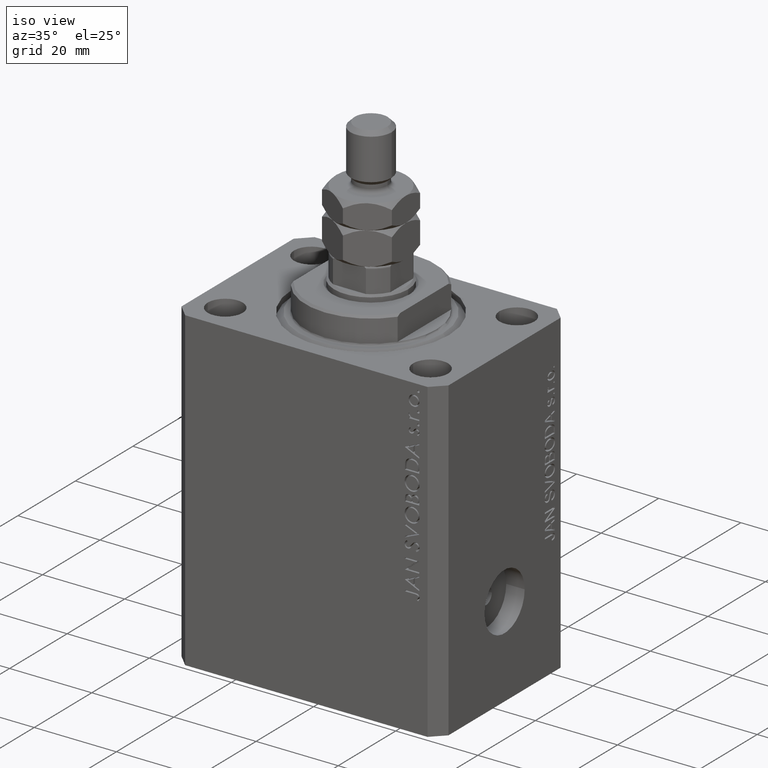
[diagram: clean part render]
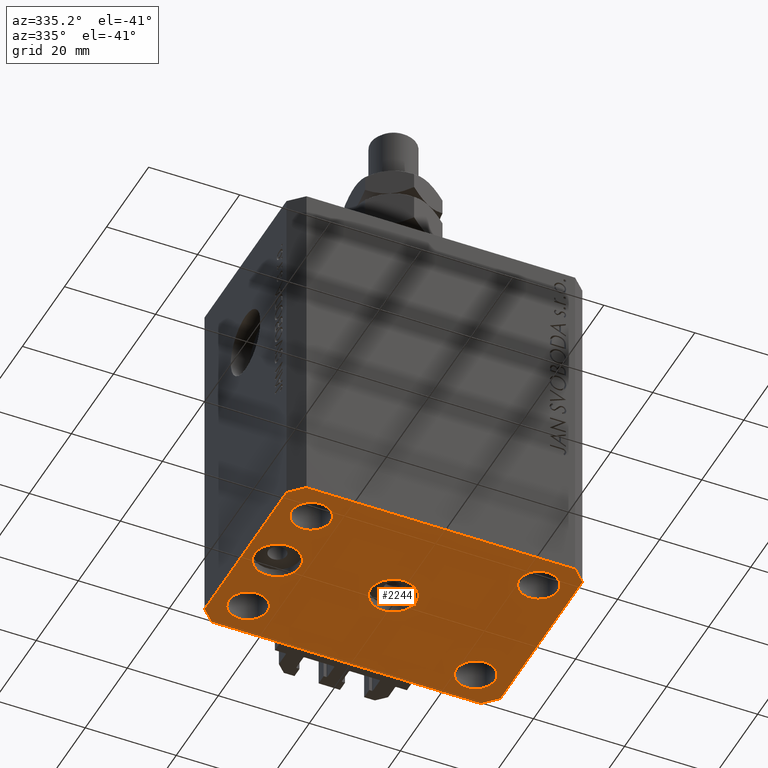
[diagram: tour spotlight — one face highlighted and labeled with its STEP entity id]
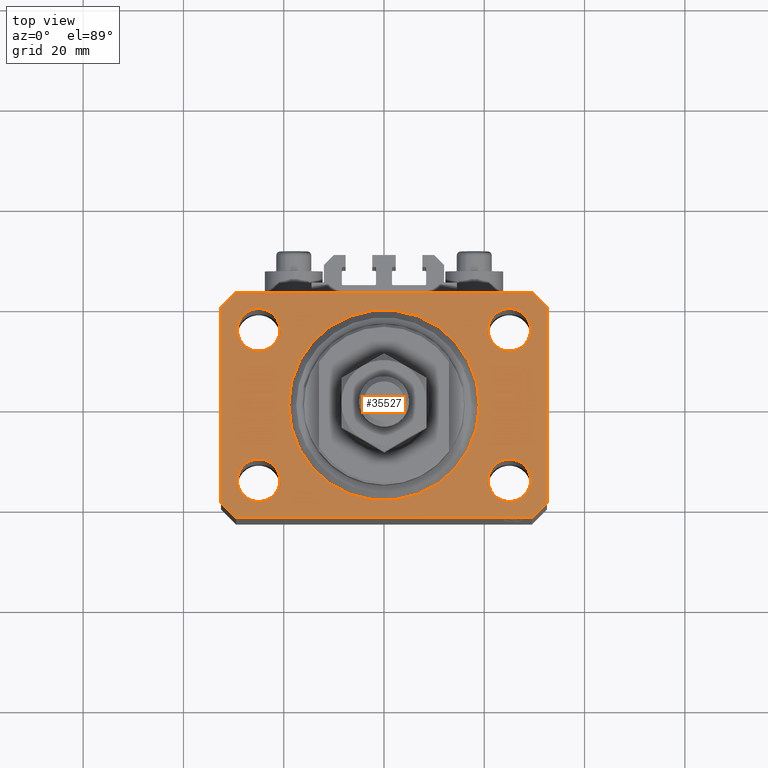
[diagram: tour spotlight — one face highlighted and labeled with its STEP entity id]
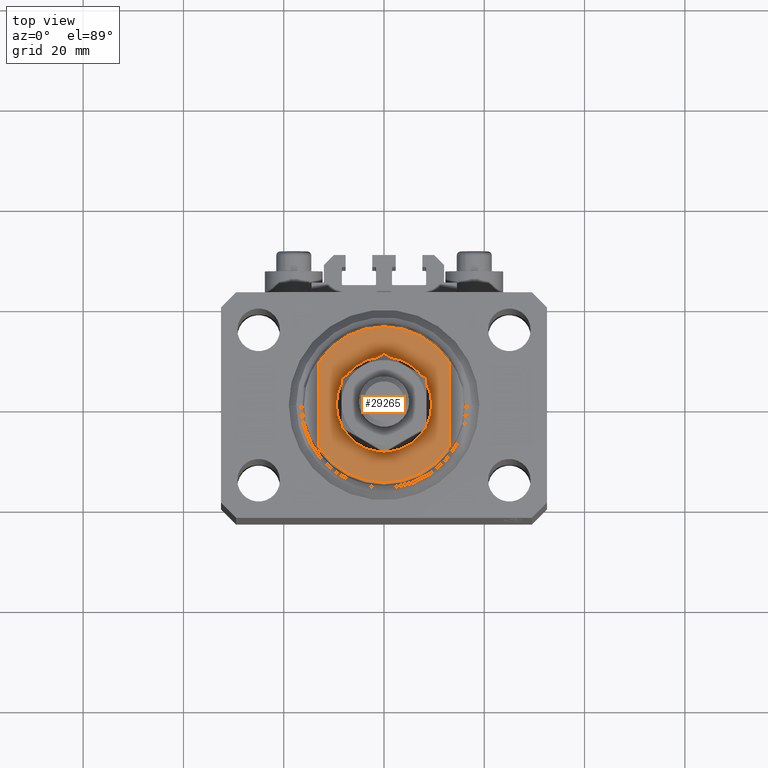
[diagram: tour spotlight — one face highlighted and labeled with its STEP entity id]
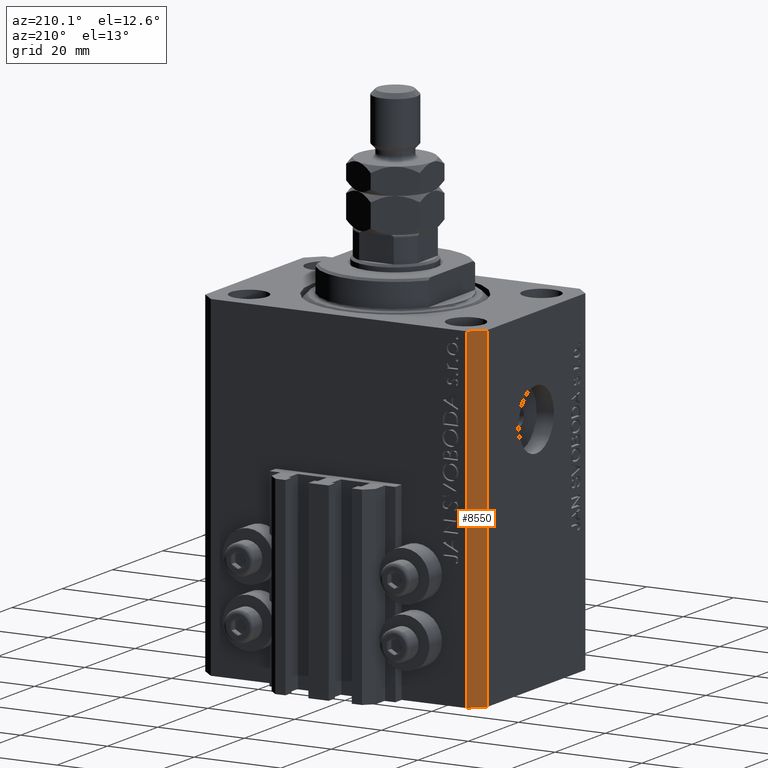
[diagram: tour spotlight — one face highlighted and labeled with its STEP entity id]
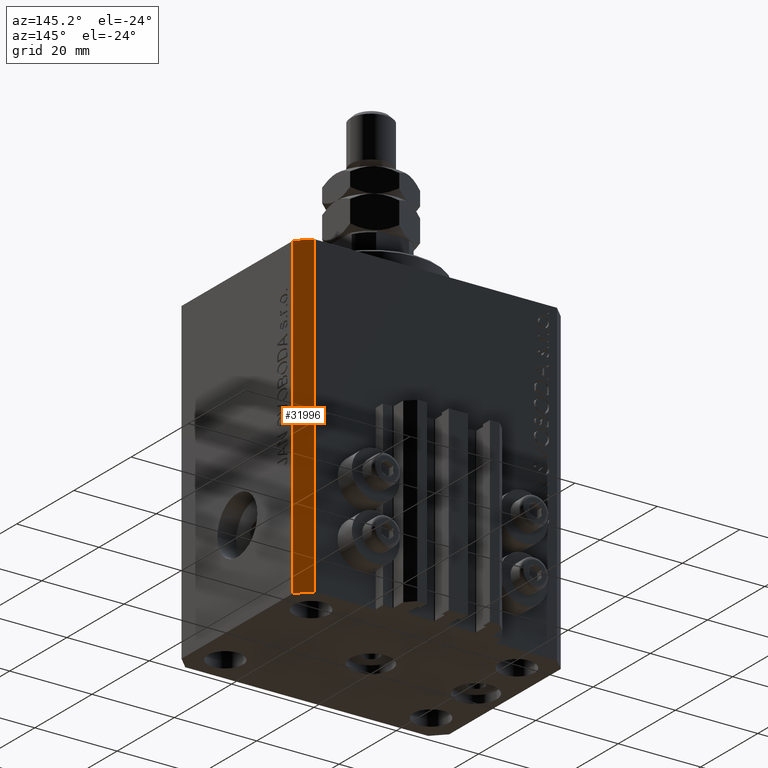
[diagram: tour spotlight — one face highlighted and labeled with its STEP entity id]
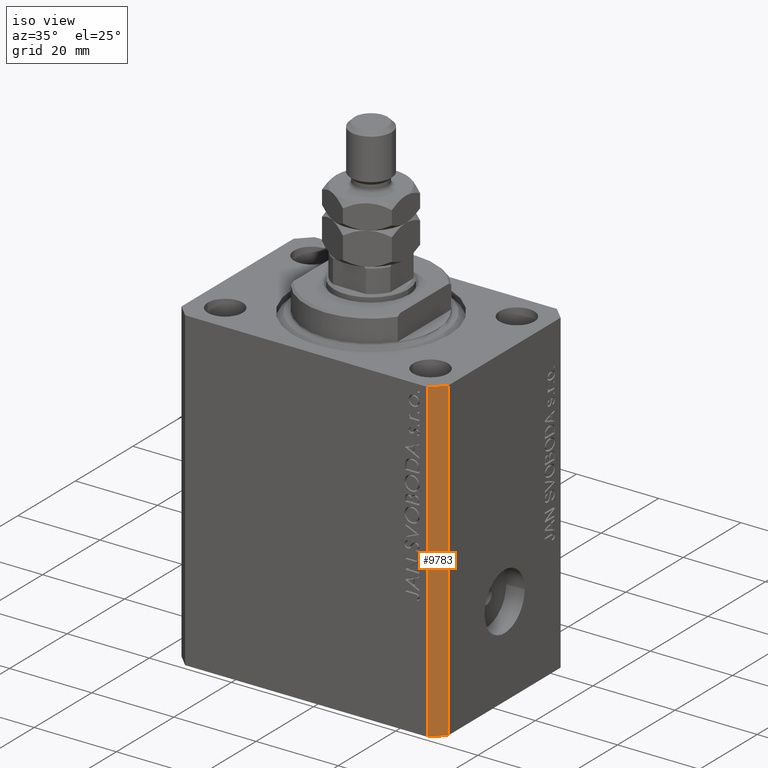
[diagram: tour spotlight — one face highlighted and labeled with its STEP entity id]
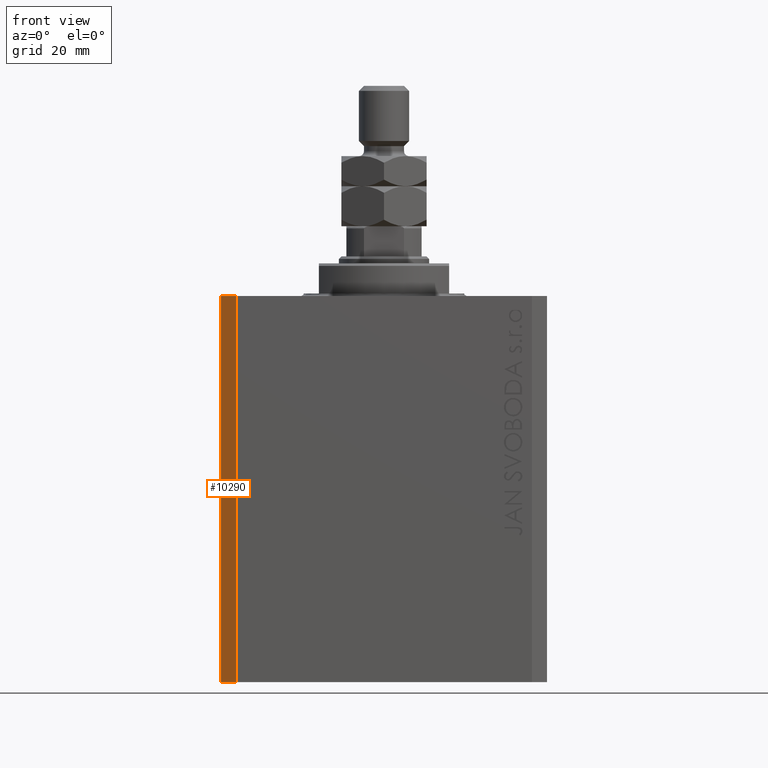
[diagram: tour spotlight — one face highlighted and labeled with its STEP entity id]
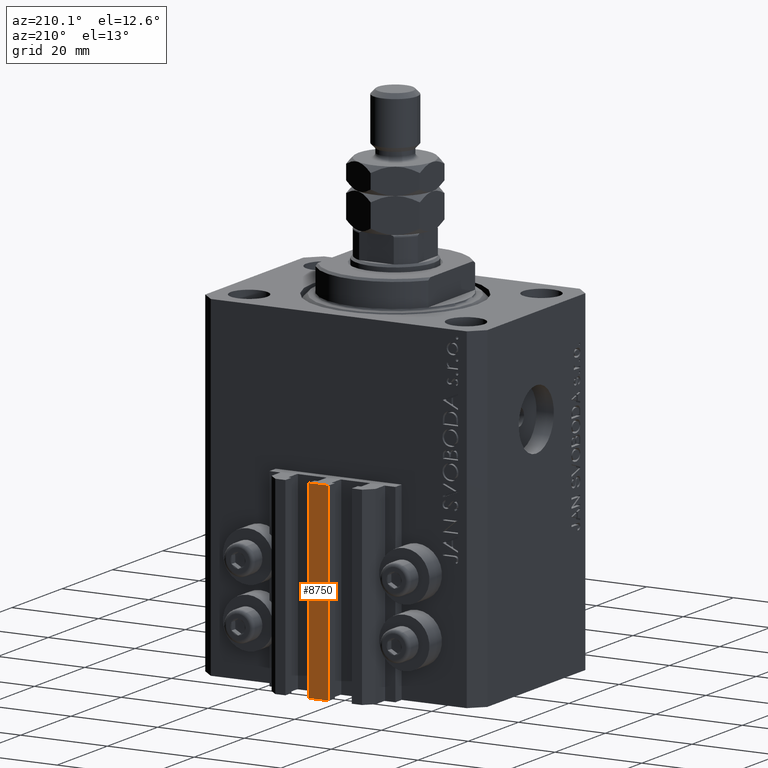
[diagram: tour spotlight — one face highlighted and labeled with its STEP entity id]
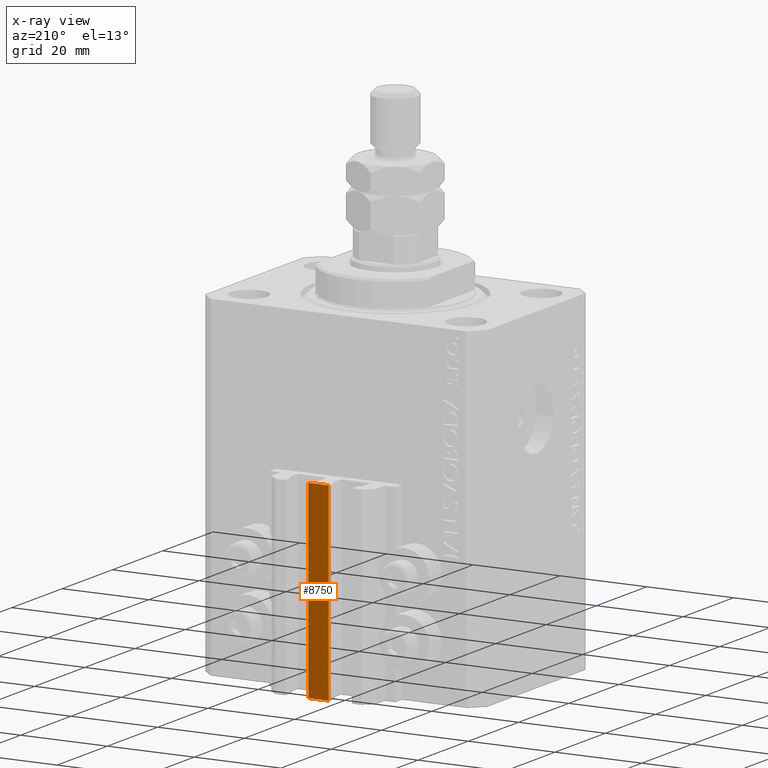
[diagram: x-ray of the same camera — body ghosted, this tour face saturated]
A machine part: a face-by-face anatomy tour. The part has 1091 B-rep faces; the first image is the clean iso view, then the 8 largest visible faces are spotlighted one at a time (largest first), each with its STEP entity span.

Face 1 — auxiliary view, entity #2244. In plain terms, the highlighted planar face has unit normal (0, 0, 1).
Definition (entity closure, byte-faithful):
#59 = ORIENTED_EDGE ( 'NONE', *, *, #20516, .F. ) ;
#62 = CIRCLE ( 'NONE', #6404, 4.999999999996659561 ) ;
#103 = AXIS2_PLACEMENT_3D ( 'NONE', #32892, #9867, #47788 ) ;
#104 = VECTOR ( 'NONE', #17889, 1000.000000000000114 ) ;
#247 = ORIENTED_EDGE ( 'NONE', *, *, #26452, .F. ) ;
#261 = CARTESIAN_POINT ( 'NONE',  ( 20.75000000002367884, -15.00000000000000355, -77.00000000000000000 ) ) ;
#453 = CARTESIAN_POINT ( 'NONE',  ( 32.49999999999651124, -19.49999999999949196, -77.00000000000000000 ) ) ;
#462 = EDGE_CURVE ( 'NONE', #41095, #13057, #23715, .T. ) ;
#701 = VERTEX_POINT ( 'NONE', #24820 ) ;
#719 = EDGE_CURVE ( 'NONE', #37061, #46610, #48325, .T. ) ;
#786 = DIRECTION ( 'NONE',  ( 0.000000000000000000, 0.000000000000000000, -1.000000000000000000 ) ) ;
#1249 = AXIS2_PLACEMENT_3D ( 'NONE', #25672, #48716, #7577 ) ;
#1302 = CARTESIAN_POINT ( 'NONE',  ( -20.74999999995962341, -15.00000000000000355, -77.00000000000000000 ) ) ;
#1388 = DIRECTION ( 'NONE',  ( -0.000000000000000000, -0.000000000000000000, -1.000000000000000000 ) ) ;
#1491 = VERTEX_POINT ( 'NONE', #1302 ) ;
#1628 = DIRECTION ( 'NONE',  ( -1.000000000000000000, 0.000000000000000000, 0.000000000000000000 ) ) ;
#1862 = DIRECTION ( 'NONE',  ( 1.000000000000000000, 0.000000000000000000, 0.000000000000000000 ) ) ;
#2244 = ADVANCED_FACE ( 'NONE', ( #29364, #11524, #3607, #45481, #33835, #2869, #33344 ), #14261, .F. ) ;
#2302 = LINE ( 'NONE', #29268, #104 ) ;
#2869 = FACE_BOUND ( 'NONE', #13497, .T. ) ;
#2940 = EDGE_CURVE ( 'NONE', #31218, #13473, #36666, .T. ) ;
#3198 = DIRECTION ( 'NONE',  ( -1.000000000000000000, -3.528251137580330676E-16, 0.000000000000000000 ) ) ;
#3607 = FACE_BOUND ( 'NONE', #5754, .T. ) ;
#4017 = AXIS2_PLACEMENT_3D ( 'NONE', #13726, #28821, #1862 ) ;
#4232 = CIRCLE ( 'NONE', #38266, 5.000000000000000000 ) ;
#4612 = DIRECTION ( 'NONE',  ( -0.000000000000000000, -0.000000000000000000, -1.000000000000000000 ) ) ;
#4625 = AXIS2_PLACEMENT_3D ( 'NONE', #34734, #786, #15896 ) ;
#5754 = EDGE_LOOP ( 'NONE', ( #43976, #26712 ) ) ;
#5830 = AXIS2_PLACEMENT_3D ( 'NONE', #47377, #20613, #24578 ) ;
#6180 = ORIENTED_EDGE ( 'NONE', *, *, #24286, .F. ) ;
#6404 = AXIS2_PLACEMENT_3D ( 'NONE', #40593, #25213, #29157 ) ;
#6427 = ORIENTED_EDGE ( 'NONE', *, *, #8540, .F. ) ;
#6837 = DIRECTION ( 'NONE',  ( -0.000000000000000000, -0.000000000000000000, -1.000000000000000000 ) ) ;
#6841 = DIRECTION ( 'NONE',  ( 1.000000000000000000, 0.000000000000000000, -0.000000000000000000 ) ) ;
#6992 = CIRCLE ( 'NONE', #4625, 4.999999999996659561 ) ;
#7188 = ORIENTED_EDGE ( 'NONE', *, *, #11378, .F. ) ;
#7402 = EDGE_LOOP ( 'NONE', ( #6180, #14826 ) ) ;
#7577 = DIRECTION ( 'NONE',  ( 1.000000000000000000, 0.000000000000000000, 0.000000000000000000 ) ) ;
#8329 = CARTESIAN_POINT ( 'NONE',  ( 25.00000000000000000, 14.99999999999999289, -77.00000000000000000 ) ) ;
#8540 = EDGE_CURVE ( 'NONE', #15214, #17379, #21715, .T. ) ;
#8763 = CIRCLE ( 'NONE', #4017, 4.250000000040370374 ) ;
#8842 = VERTEX_POINT ( 'NONE', #16241 ) ;
#8947 = VERTEX_POINT ( 'NONE', #22386 ) ;
#9867 = DIRECTION ( 'NONE',  ( -0.000000000000000000, -0.000000000000000000, -1.000000000000000000 ) ) ;
#10452 = CIRCLE ( 'NONE', #23948, 4.250000000040370374 ) ;
#11003 = EDGE_CURVE ( 'NONE', #23721, #701, #41205, .T. ) ;
#11282 = CARTESIAN_POINT ( 'NONE',  ( 24.99999999999999289, -15.00000000000000355, -77.00000000000000000 ) ) ;
#11378 = EDGE_CURVE ( 'NONE', #13347, #20943, #62, .T. ) ;
#11524 = FACE_BOUND ( 'NONE', #17331, .T. ) ;
#12761 = ORIENTED_EDGE ( 'NONE', *, *, #14538, .F. ) ;
#13057 = VERTEX_POINT ( 'NONE', #16855 ) ;
#13340 = VERTEX_POINT ( 'NONE', #31162 ) ;
#13347 = VERTEX_POINT ( 'NONE', #19764 ) ;
#13473 = VERTEX_POINT ( 'NONE', #17972 ) ;
#13497 = EDGE_LOOP ( 'NONE', ( #18049, #14944 ) ) ;
#13726 = CARTESIAN_POINT ( 'NONE',  ( -24.99999999999999289, -15.00000000000000355, -77.00000000000000000 ) ) ;
#13880 = CARTESIAN_POINT ( 'NONE',  ( 29.49999999999650413, -22.49999999999949196, -77.00000000000000000 ) ) ;
#13948 = CARTESIAN_POINT ( 'NONE',  ( 29.24999999995729283, 14.99999999999999289, -77.00000000000000000 ) ) ;
#14118 = LINE ( 'NONE', #13880, #27043 ) ;
#14261 = PLANE ( 'NONE',  #16993 ) ;
#14366 = EDGE_LOOP ( 'NONE', ( #29185, #59 ) ) ;
#14538 = EDGE_CURVE ( 'NONE', #13340, #8842, #14118, .T. ) ;
#14826 = ORIENTED_EDGE ( 'NONE', *, *, #21299, .F. ) ;
#14944 = ORIENTED_EDGE ( 'NONE', *, *, #11003, .F. ) ;
#15214 = VERTEX_POINT ( 'NONE', #21931 ) ;
#15392 = LINE ( 'NONE', #45632, #28543 ) ;
#15406 = DIRECTION ( 'NONE',  ( -0.000000000000000000, -0.000000000000000000, -1.000000000000000000 ) ) ;
#15896 = DIRECTION ( 'NONE',  ( -1.000000000000000000, 0.000000000000000000, 0.000000000000000000 ) ) ;
#16241 = CARTESIAN_POINT ( 'NONE',  ( 32.49999999999651124, -19.49999999999949196, -77.00000000000000000 ) ) ;
#16604 = ORIENTED_EDGE ( 'NONE', *, *, #462, .F. ) ;
#16855 = CARTESIAN_POINT ( 'NONE',  ( 29.24999999997631051, -15.00000000000000355, -77.00000000000000000 ) ) ;
#16993 = AXIS2_PLACEMENT_3D ( 'NONE', #44499, #25663, #6841 ) ;
#17331 = EDGE_LOOP ( 'NONE', ( #7188, #30101 ) ) ;
#17379 = VERTEX_POINT ( 'NONE', #40709 ) ;
#17451 = DIRECTION ( 'NONE',  ( 0.000000000000000000, 0.000000000000000000, -1.000000000000000000 ) ) ;
#17808 = EDGE_LOOP ( 'NONE', ( #20852, #16604 ) ) ;
#17833 = DIRECTION ( 'NONE',  ( 0.7071067811865483499, 0.7071067811865466846, 0.000000000000000000 ) ) ;
#17889 = DIRECTION ( 'NONE',  ( -0.7071067811865474617, -0.7071067811865474617, 0.000000000000000000 ) ) ;
#17925 = CARTESIAN_POINT ( 'NONE',  ( -29.49999999999650413, 22.49999999999949907, -77.00000000000000000 ) ) ;
#17972 = CARTESIAN_POINT ( 'NONE',  ( 5.000000000000000000, 6.123233995736765296E-16, -77.00000000000000000 ) ) ;
#18049 = ORIENTED_EDGE ( 'NONE', *, *, #29183, .F. ) ;
#18057 = CARTESIAN_POINT ( 'NONE',  ( 29.49999999999707967, 22.49999999999952038, -77.00000000000000000 ) ) ;
#18665 = CARTESIAN_POINT ( 'NONE',  ( -32.49999999999650413, -19.49999999999949907, -77.00000000000000000 ) ) ;
#19321 = EDGE_LOOP ( 'NONE', ( #247, #6427, #34060, #12761, #39191, #44437, #27217, #20368 ) ) ;
#19722 = DIRECTION ( 'NONE',  ( 1.000000000000000000, 0.000000000000000000, 0.000000000000000000 ) ) ;
#19764 = CARTESIAN_POINT ( 'NONE',  ( -30.49999999999665690, 0.000000000000000000, -77.00000000000000000 ) ) ;
#20368 = ORIENTED_EDGE ( 'NONE', *, *, #27563, .F. ) ;
#20516 = EDGE_CURVE ( 'NONE', #13473, #31218, #4232, .T. ) ;
#20613 = DIRECTION ( 'NONE',  ( 0.000000000000000000, 0.000000000000000000, -1.000000000000000000 ) ) ;
#20852 = ORIENTED_EDGE ( 'NONE', *, *, #35295, .F. ) ;
#20943 = VERTEX_POINT ( 'NONE', #47879 ) ;
#20965 = VERTEX_POINT ( 'NONE', #24479 ) ;
#21232 = EDGE_CURVE ( 'NONE', #20965, #1491, #10452, .T. ) ;
#21299 = EDGE_CURVE ( 'NONE', #34143, #40777, #35018, .T. ) ;
#21620 = DIRECTION ( 'NONE',  ( 1.000000000000000000, 0.000000000000000000, 0.000000000000000000 ) ) ;
#21715 = LINE ( 'NONE', #36108, #36873 ) ;
#21931 = CARTESIAN_POINT ( 'NONE',  ( 32.49999999999702993, 19.49999999999945999, -77.00000000000000000 ) ) ;
#22386 = CARTESIAN_POINT ( 'NONE',  ( -29.49999999999650413, -22.49999999999949907, -77.00000000000000000 ) ) ;
#22826 = EDGE_CURVE ( 'NONE', #8947, #13340, #15392, .T. ) ;
#23715 = CIRCLE ( 'NONE', #48239, 4.249999999976314058 ) ;
#23721 = VERTEX_POINT ( 'NONE', #47231 ) ;
#23948 = AXIS2_PLACEMENT_3D ( 'NONE', #39072, #1388, #31619 ) ;
#24286 = EDGE_CURVE ( 'NONE', #40777, #34143, #42021, .T. ) ;
#24479 = CARTESIAN_POINT ( 'NONE',  ( -29.25000000004036593, -15.00000000000000355, -77.00000000000000000 ) ) ;
#24578 = DIRECTION ( 'NONE',  ( -1.000000000000000000, 0.000000000000000000, 0.000000000000000000 ) ) ;
#24820 = CARTESIAN_POINT ( 'NONE',  ( -20.74999999997862687, 14.99999999999999645, -77.00000000000000000 ) ) ;
#25213 = DIRECTION ( 'NONE',  ( 0.000000000000000000, 0.000000000000000000, -1.000000000000000000 ) ) ;
#25342 = VERTEX_POINT ( 'NONE', #17925 ) ;
#25510 = LINE ( 'NONE', #18057, #38862 ) ;
#25663 = DIRECTION ( 'NONE',  ( 0.000000000000000000, 0.000000000000000000, 1.000000000000000000 ) ) ;
#25672 = CARTESIAN_POINT ( 'NONE',  ( -25.00000000000000000, 14.99999999999999645, -77.00000000000000000 ) ) ;
#26452 = EDGE_CURVE ( 'NONE', #17379, #25342, #25510, .T. ) ;
#26712 = ORIENTED_EDGE ( 'NONE', *, *, #21232, .F. ) ;
#27043 = VECTOR ( 'NONE', #17833, 1000.000000000000000 ) ;
#27054 = DIRECTION ( 'NONE',  ( 1.000000000000000000, 0.000000000000000000, 0.000000000000000000 ) ) ;
#27217 = ORIENTED_EDGE ( 'NONE', *, *, #719, .F. ) ;
#27266 = DIRECTION ( 'NONE',  ( 0.7071067811865474617, -0.7071067811865474617, 0.000000000000000000 ) ) ;
#27563 = EDGE_CURVE ( 'NONE', #25342, #37061, #2302, .T. ) ;
#28284 = CARTESIAN_POINT ( 'NONE',  ( -32.49999999999650413, 19.49999999999949907, -77.00000000000000000 ) ) ;
#28543 = VECTOR ( 'NONE', #37952, 1000.000000000000000 ) ;
#28821 = DIRECTION ( 'NONE',  ( -0.000000000000000000, -0.000000000000000000, -1.000000000000000000 ) ) ;
#28837 = CARTESIAN_POINT ( 'NONE',  ( 0.000000000000000000, 0.000000000000000000, -77.00000000000000000 ) ) ;
#28998 = EDGE_CURVE ( 'NONE', #8842, #15214, #48536, .T. ) ;
#29157 = DIRECTION ( 'NONE',  ( -1.000000000000000000, 0.000000000000000000, 0.000000000000000000 ) ) ;
#29183 = EDGE_CURVE ( 'NONE', #701, #23721, #31304, .T. ) ;
#29185 = ORIENTED_EDGE ( 'NONE', *, *, #2940, .F. ) ;
#29268 = CARTESIAN_POINT ( 'NONE',  ( -29.49999999999650413, 22.49999999999949907, -77.00000000000000000 ) ) ;
#29364 = FACE_BOUND ( 'NONE', #14366, .T. ) ;
#30101 = ORIENTED_EDGE ( 'NONE', *, *, #36515, .F. ) ;
#30126 = AXIS2_PLACEMENT_3D ( 'NONE', #36493, #40455, #21620 ) ;
#30181 = DIRECTION ( 'NONE',  ( 1.334402673828349134E-14, 1.000000000000000000, 0.000000000000000000 ) ) ;
#30570 = VECTOR ( 'NONE', #27266, 1000.000000000000114 ) ;
#31162 = CARTESIAN_POINT ( 'NONE',  ( 29.49999999999650413, -22.49999999999949196, -77.00000000000000000 ) ) ;
#31215 = EDGE_CURVE ( 'NONE', #46610, #8947, #38930, .T. ) ;
#31218 = VERTEX_POINT ( 'NONE', #46850 ) ;
#31304 = CIRCLE ( 'NONE', #1249, 4.250000000021375790 ) ;
#31619 = DIRECTION ( 'NONE',  ( 1.000000000000000000, 0.000000000000000000, 0.000000000000000000 ) ) ;
#31976 = CARTESIAN_POINT ( 'NONE',  ( -32.49999999999650413, -19.49999999999949907, -77.00000000000000000 ) ) ;
#32742 = VECTOR ( 'NONE', #39701, 1000.000000000000000 ) ;
#32892 = CARTESIAN_POINT ( 'NONE',  ( 25.00000000000000000, 14.99999999999999289, -77.00000000000000000 ) ) ;
#33339 = DIRECTION ( 'NONE',  ( 1.000000000000000000, 0.000000000000000000, 0.000000000000000000 ) ) ;
#33344 = FACE_OUTER_BOUND ( 'NONE', #19321, .T. ) ;
#33835 = FACE_BOUND ( 'NONE', #7402, .T. ) ;
#34060 = ORIENTED_EDGE ( 'NONE', *, *, #28998, .F. ) ;
#34143 = VERTEX_POINT ( 'NONE', #39094 ) ;
#34734 = CARTESIAN_POINT ( 'NONE',  ( -25.50000000000000000, 0.000000000000000000, -77.00000000000000000 ) ) ;
#35018 = CIRCLE ( 'NONE', #37371, 4.249999999957291053 ) ;
#35295 = EDGE_CURVE ( 'NONE', #13057, #41095, #38638, .T. ) ;
#35296 = CARTESIAN_POINT ( 'NONE',  ( -32.49999999999650413, 19.49999999999949907, -77.00000000000000000 ) ) ;
#36108 = CARTESIAN_POINT ( 'NONE',  ( 32.49999999999702993, 19.49999999999945999, -77.00000000000000000 ) ) ;
#36493 = CARTESIAN_POINT ( 'NONE',  ( -25.00000000000000000, 14.99999999999999645, -77.00000000000000000 ) ) ;
#36515 = EDGE_CURVE ( 'NONE', #20943, #13347, #6992, .T. ) ;
#36666 = CIRCLE ( 'NONE', #5830, 5.000000000000000000 ) ;
#36873 = VECTOR ( 'NONE', #40794, 1000.000000000000000 ) ;
#37061 = VERTEX_POINT ( 'NONE', #35296 ) ;
#37371 = AXIS2_PLACEMENT_3D ( 'NONE', #8329, #4612, #19722 ) ;
#37952 = DIRECTION ( 'NONE',  ( 1.000000000000000000, 1.176083712526788232E-16, 0.000000000000000000 ) ) ;
#38266 = AXIS2_PLACEMENT_3D ( 'NONE', #28837, #17451, #1628 ) ;
#38638 = CIRCLE ( 'NONE', #40985, 4.249999999976314058 ) ;
#38862 = VECTOR ( 'NONE', #3198, 1000.000000000000000 ) ;
#38930 = LINE ( 'NONE', #31976, #30570 ) ;
#39072 = CARTESIAN_POINT ( 'NONE',  ( -24.99999999999999289, -15.00000000000000355, -77.00000000000000000 ) ) ;
#39094 = CARTESIAN_POINT ( 'NONE',  ( 20.75000000004271072, 14.99999999999999289, -77.00000000000000000 ) ) ;
#39191 = ORIENTED_EDGE ( 'NONE', *, *, #22826, .F. ) ;
#39701 = DIRECTION ( 'NONE',  ( 0.000000000000000000, -1.000000000000000000, 0.000000000000000000 ) ) ;
#40455 = DIRECTION ( 'NONE',  ( -0.000000000000000000, -0.000000000000000000, -1.000000000000000000 ) ) ;
#40593 = CARTESIAN_POINT ( 'NONE',  ( -25.50000000000000000, 0.000000000000000000, -77.00000000000000000 ) ) ;
#40709 = CARTESIAN_POINT ( 'NONE',  ( 29.49999999999707967, 22.49999999999952038, -77.00000000000000000 ) ) ;
#40777 = VERTEX_POINT ( 'NONE', #13948 ) ;
#40794 = DIRECTION ( 'NONE',  ( -0.7071067811865344721, 0.7071067811865606734, 0.000000000000000000 ) ) ;
#40985 = AXIS2_PLACEMENT_3D ( 'NONE', #11282, #6837, #33339 ) ;
#41095 = VERTEX_POINT ( 'NONE', #261 ) ;
#41205 = CIRCLE ( 'NONE', #30126, 4.250000000021375790 ) ;
#41550 = EDGE_CURVE ( 'NONE', #1491, #20965, #8763, .T. ) ;
#41589 = VECTOR ( 'NONE', #30181, 1000.000000000000000 ) ;
#42021 = CIRCLE ( 'NONE', #103, 4.249999999957291053 ) ;
#43976 = ORIENTED_EDGE ( 'NONE', *, *, #41550, .F. ) ;
#44437 = ORIENTED_EDGE ( 'NONE', *, *, #31215, .F. ) ;
#44499 = CARTESIAN_POINT ( 'NONE',  ( 0.000000000000000000, 0.000000000000000000, -77.00000000000000000 ) ) ;
#45481 = FACE_BOUND ( 'NONE', #17808, .T. ) ;
#45632 = CARTESIAN_POINT ( 'NONE',  ( -29.49999999999650413, -22.49999999999949907, -77.00000000000000000 ) ) ;
#45645 = CARTESIAN_POINT ( 'NONE',  ( 24.99999999999999289, -15.00000000000000355, -77.00000000000000000 ) ) ;
#46610 = VERTEX_POINT ( 'NONE', #18665 ) ;
#46850 = CARTESIAN_POINT ( 'NONE',  ( -5.000000000000000000, 0.000000000000000000, -77.00000000000000000 ) ) ;
#47231 = CARTESIAN_POINT ( 'NONE',  ( -29.25000000002137668, 14.99999999999999645, -77.00000000000000000 ) ) ;
#47377 = CARTESIAN_POINT ( 'NONE',  ( 0.000000000000000000, 0.000000000000000000, -77.00000000000000000 ) ) ;
#47788 = DIRECTION ( 'NONE',  ( 1.000000000000000000, 0.000000000000000000, 0.000000000000000000 ) ) ;
#47879 = CARTESIAN_POINT ( 'NONE',  ( -20.50000000000333955, 6.123233995732674066E-16, -77.00000000000000000 ) ) ;
#48239 = AXIS2_PLACEMENT_3D ( 'NONE', #45645, #15406, #27054 ) ;
#48325 = LINE ( 'NONE', #28284, #32742 ) ;
#48536 = LINE ( 'NONE', #453, #41589 ) ;
#48716 = DIRECTION ( 'NONE',  ( -0.000000000000000000, -0.000000000000000000, -1.000000000000000000 ) ) ;

Face 2 — top view, entity #35527. In plain terms, the highlighted planar face has unit normal (0, 0, 1).
Definition (entity closure, byte-faithful):
#500 = EDGE_LOOP ( 'NONE', ( #26646, #27893 ) ) ;
#775 = CARTESIAN_POINT ( 'NONE',  ( -29.49999999999650413, 22.49999999999949907, 0.000000000000000000 ) ) ;
#1315 = EDGE_CURVE ( 'NONE', #24039, #36763, #40213, .T. ) ;
#1481 = DIRECTION ( 'NONE',  ( 1.000000000000000000, 0.000000000000000000, 0.000000000000000000 ) ) ;
#1837 = AXIS2_PLACEMENT_3D ( 'NONE', #21711, #44498, #8552 ) ;
#2699 = CARTESIAN_POINT ( 'NONE',  ( -32.49999999999650413, 19.49999999999949907, 0.000000000000000000 ) ) ;
#2746 = VERTEX_POINT ( 'NONE', #31525 ) ;
#3532 = DIRECTION ( 'NONE',  ( 1.000000000000000000, 0.000000000000000000, 0.000000000000000000 ) ) ;
#3597 = CARTESIAN_POINT ( 'NONE',  ( -25.00000000000000000, 14.99999999999999645, 0.000000000000000000 ) ) ;
#3786 = FACE_BOUND ( 'NONE', #34012, .T. ) ;
#4675 = EDGE_LOOP ( 'NONE', ( #46760, #17687 ) ) ;
#4773 = CIRCLE ( 'NONE', #35661, 4.249999999976314058 ) ;
#4815 = DIRECTION ( 'NONE',  ( 1.000000000000000000, 0.000000000000000000, 0.000000000000000000 ) ) ;
#5704 = AXIS2_PLACEMENT_3D ( 'NONE', #25028, #22532, #14601 ) ;
#5733 = CARTESIAN_POINT ( 'NONE',  ( -32.49999999999650413, -19.49999999999949907, 0.000000000000000000 ) ) ;
#5781 = CARTESIAN_POINT ( 'NONE',  ( 19.00000000000000000, 0.000000000000000000, 0.000000000000000000 ) ) ;
#6634 = VERTEX_POINT ( 'NONE', #39632 ) ;
#6739 = CARTESIAN_POINT ( 'NONE',  ( 32.49999999999651124, -19.49999999999949196, 0.000000000000000000 ) ) ;
#7067 = DIRECTION ( 'NONE',  ( 0.000000000000000000, 0.000000000000000000, 1.000000000000000000 ) ) ;
#7505 = FACE_BOUND ( 'NONE', #4675, .T. ) ;
#7526 = EDGE_CURVE ( 'NONE', #2746, #23132, #24191, .T. ) ;
#7755 = VERTEX_POINT ( 'NONE', #30653 ) ;
#8152 = CIRCLE ( 'NONE', #1837, 4.249999999957291053 ) ;
#8338 = CARTESIAN_POINT ( 'NONE',  ( -29.49999999999650413, 22.49999999999949907, 0.000000000000000000 ) ) ;
#8552 = DIRECTION ( 'NONE',  ( 1.000000000000000000, 0.000000000000000000, 0.000000000000000000 ) ) ;
#9112 = EDGE_CURVE ( 'NONE', #48598, #39029, #27822, .T. ) ;
#9446 = CARTESIAN_POINT ( 'NONE',  ( -29.25000000002137668, 14.99999999999999645, 0.000000000000000000 ) ) ;
#10173 = EDGE_CURVE ( 'NONE', #39029, #42187, #42644, .T. ) ;
#10381 = CIRCLE ( 'NONE', #31769, 4.250000000040370374 ) ;
#10509 = CARTESIAN_POINT ( 'NONE',  ( -19.00000000000000000, 2.326828918379970970E-15, 0.000000000000000000 ) ) ;
#10723 = CARTESIAN_POINT ( 'NONE',  ( -24.99999999999999289, -15.00000000000000355, 0.000000000000000000 ) ) ;
#10731 = PLANE ( 'NONE',  #15686 ) ;
#11553 = EDGE_CURVE ( 'NONE', #13069, #48598, #15710, .T. ) ;
#11614 = DIRECTION ( 'NONE',  ( 0.000000000000000000, -1.000000000000000000, 0.000000000000000000 ) ) ;
#12365 = CARTESIAN_POINT ( 'NONE',  ( -32.49999999999650413, 19.49999999999949907, 0.000000000000000000 ) ) ;
#12417 = DIRECTION ( 'NONE',  ( -0.7071067811865474617, -0.7071067811865474617, 0.000000000000000000 ) ) ;
#13069 = VERTEX_POINT ( 'NONE', #20084 ) ;
#13224 = AXIS2_PLACEMENT_3D ( 'NONE', #30963, #46834, #1481 ) ;
#13439 = ORIENTED_EDGE ( 'NONE', *, *, #17325, .F. ) ;
#13488 = ORIENTED_EDGE ( 'NONE', *, *, #16168, .T. ) ;
#14070 = VERTEX_POINT ( 'NONE', #24083 ) ;
#14292 = EDGE_CURVE ( 'NONE', #21808, #29444, #28630, .T. ) ;
#14423 = LINE ( 'NONE', #44656, #16044 ) ;
#14601 = DIRECTION ( 'NONE',  ( 1.000000000000000000, 0.000000000000000000, 0.000000000000000000 ) ) ;
#15029 = CARTESIAN_POINT ( 'NONE',  ( 24.99999999999999289, -15.00000000000000355, 0.000000000000000000 ) ) ;
#15350 = ORIENTED_EDGE ( 'NONE', *, *, #11553, .T. ) ;
#15425 = ORIENTED_EDGE ( 'NONE', *, *, #19399, .F. ) ;
#15686 = AXIS2_PLACEMENT_3D ( 'NONE', #18639, #33033, #33772 ) ;
#15710 = LINE ( 'NONE', #45949, #30057 ) ;
#15838 = EDGE_CURVE ( 'NONE', #47547, #33412, #31843, .T. ) ;
#16044 = VECTOR ( 'NONE', #19552, 1000.000000000000000 ) ;
#16168 = EDGE_CURVE ( 'NONE', #29757, #13069, #43469, .T. ) ;
#17280 = VERTEX_POINT ( 'NONE', #30814 ) ;
#17325 = EDGE_CURVE ( 'NONE', #23132, #2746, #10381, .T. ) ;
#17687 = ORIENTED_EDGE ( 'NONE', *, *, #23028, .F. ) ;
#17913 = FACE_BOUND ( 'NONE', #25543, .T. ) ;
#18062 = LINE ( 'NONE', #5733, #29927 ) ;
#18639 = CARTESIAN_POINT ( 'NONE',  ( 0.000000000000000000, 0.000000000000000000, 0.000000000000000000 ) ) ;
#18749 = ORIENTED_EDGE ( 'NONE', *, *, #27612, .T. ) ;
#18830 = AXIS2_PLACEMENT_3D ( 'NONE', #3597, #7067, #25653 ) ;
#19178 = EDGE_CURVE ( 'NONE', #14070, #29757, #14423, .T. ) ;
#19307 = LINE ( 'NONE', #12365, #34933 ) ;
#19399 = EDGE_CURVE ( 'NONE', #33412, #47547, #8152, .T. ) ;
#19488 = CARTESIAN_POINT ( 'NONE',  ( -29.49999999999650413, -22.49999999999949907, 0.000000000000000000 ) ) ;
#19552 = DIRECTION ( 'NONE',  ( 0.7071067811865483499, 0.7071067811865466846, 0.000000000000000000 ) ) ;
#20084 = CARTESIAN_POINT ( 'NONE',  ( 32.49999999999702993, 19.49999999999945999, 0.000000000000000000 ) ) ;
#20104 = CARTESIAN_POINT ( 'NONE',  ( -25.00000000000000000, 14.99999999999999645, 0.000000000000000000 ) ) ;
#20122 = EDGE_LOOP ( 'NONE', ( #22640, #41885 ) ) ;
#21711 = CARTESIAN_POINT ( 'NONE',  ( 25.00000000000000000, 14.99999999999999289, 0.000000000000000000 ) ) ;
#21808 = VERTEX_POINT ( 'NONE', #5781 ) ;
#21882 = ORIENTED_EDGE ( 'NONE', *, *, #36572, .T. ) ;
#21990 = DIRECTION ( 'NONE',  ( -0.7071067811865344721, 0.7071067811865606734, 0.000000000000000000 ) ) ;
#22532 = DIRECTION ( 'NONE',  ( 0.000000000000000000, 0.000000000000000000, 1.000000000000000000 ) ) ;
#22640 = ORIENTED_EDGE ( 'NONE', *, *, #14292, .F. ) ;
#22978 = DIRECTION ( 'NONE',  ( 1.000000000000000000, 0.000000000000000000, 0.000000000000000000 ) ) ;
#23028 = EDGE_CURVE ( 'NONE', #44851, #6634, #41207, .T. ) ;
#23130 = AXIS2_PLACEMENT_3D ( 'NONE', #30647, #38598, #22978 ) ;
#23132 = VERTEX_POINT ( 'NONE', #33919 ) ;
#23867 = ORIENTED_EDGE ( 'NONE', *, *, #9112, .T. ) ;
#24039 = VERTEX_POINT ( 'NONE', #9446 ) ;
#24083 = CARTESIAN_POINT ( 'NONE',  ( 29.49999999999650413, -22.49999999999949196, 0.000000000000000000 ) ) ;
#24191 = CIRCLE ( 'NONE', #30493, 4.250000000040370374 ) ;
#24996 = ORIENTED_EDGE ( 'NONE', *, *, #38962, .T. ) ;
#25028 = CARTESIAN_POINT ( 'NONE',  ( 0.000000000000000000, 0.000000000000000000, 0.000000000000000000 ) ) ;
#25325 = CARTESIAN_POINT ( 'NONE',  ( 29.49999999999707967, 22.49999999999952038, 0.000000000000000000 ) ) ;
#25543 = EDGE_LOOP ( 'NONE', ( #15425, #45820 ) ) ;
#25602 = FACE_BOUND ( 'NONE', #20122, .T. ) ;
#25653 = DIRECTION ( 'NONE',  ( 1.000000000000000000, 0.000000000000000000, 0.000000000000000000 ) ) ;
#26646 = ORIENTED_EDGE ( 'NONE', *, *, #44726, .F. ) ;
#26948 = EDGE_LOOP ( 'NONE', ( #23867, #27006, #18749, #21882, #24996, #32028, #13488, #15350 ) ) ;
#27006 = ORIENTED_EDGE ( 'NONE', *, *, #10173, .T. ) ;
#27612 = EDGE_CURVE ( 'NONE', #42187, #7755, #19307, .T. ) ;
#27822 = LINE ( 'NONE', #42199, #33299 ) ;
#27868 = DIRECTION ( 'NONE',  ( 1.334402673828349134E-14, 1.000000000000000000, 0.000000000000000000 ) ) ;
#27893 = ORIENTED_EDGE ( 'NONE', *, *, #1315, .F. ) ;
#28071 = DIRECTION ( 'NONE',  ( -1.000000000000000000, -3.528251137580330676E-16, 0.000000000000000000 ) ) ;
#28142 = CARTESIAN_POINT ( 'NONE',  ( 20.75000000004271072, 14.99999999999999289, 0.000000000000000000 ) ) ;
#28330 = DIRECTION ( 'NONE',  ( 0.000000000000000000, 0.000000000000000000, 1.000000000000000000 ) ) ;
#28630 = CIRCLE ( 'NONE', #5704, 19.00000000000000000 ) ;
#29444 = VERTEX_POINT ( 'NONE', #10509 ) ;
#29491 = VECTOR ( 'NONE', #12417, 1000.000000000000114 ) ;
#29552 = ORIENTED_EDGE ( 'NONE', *, *, #7526, .F. ) ;
#29757 = VERTEX_POINT ( 'NONE', #6739 ) ;
#29897 = DIRECTION ( 'NONE',  ( 1.000000000000000000, 0.000000000000000000, 0.000000000000000000 ) ) ;
#29927 = VECTOR ( 'NONE', #36198, 1000.000000000000114 ) ;
#30035 = FACE_OUTER_BOUND ( 'NONE', #26948, .T. ) ;
#30057 = VECTOR ( 'NONE', #21990, 1000.000000000000000 ) ;
#30493 = AXIS2_PLACEMENT_3D ( 'NONE', #10723, #40959, #3532 ) ;
#30647 = CARTESIAN_POINT ( 'NONE',  ( 25.00000000000000000, 14.99999999999999289, 0.000000000000000000 ) ) ;
#30653 = CARTESIAN_POINT ( 'NONE',  ( -32.49999999999650413, -19.49999999999949907, 0.000000000000000000 ) ) ;
#30814 = CARTESIAN_POINT ( 'NONE',  ( -29.49999999999650413, -22.49999999999949907, 0.000000000000000000 ) ) ;
#30963 = CARTESIAN_POINT ( 'NONE',  ( 0.000000000000000000, 0.000000000000000000, 0.000000000000000000 ) ) ;
#31525 = CARTESIAN_POINT ( 'NONE',  ( -29.25000000004036593, -15.00000000000000355, 0.000000000000000000 ) ) ;
#31626 = LINE ( 'NONE', #19488, #34767 ) ;
#31769 = AXIS2_PLACEMENT_3D ( 'NONE', #39263, #28330, #4815 ) ;
#31843 = CIRCLE ( 'NONE', #23130, 4.249999999957291053 ) ;
#32028 = ORIENTED_EDGE ( 'NONE', *, *, #19178, .T. ) ;
#32223 = CARTESIAN_POINT ( 'NONE',  ( 20.75000000002367884, -15.00000000000000355, 0.000000000000000000 ) ) ;
#32232 = CIRCLE ( 'NONE', #13224, 19.00000000000000000 ) ;
#32471 = CARTESIAN_POINT ( 'NONE',  ( 24.99999999999999289, -15.00000000000000355, 0.000000000000000000 ) ) ;
#33033 = DIRECTION ( 'NONE',  ( 0.000000000000000000, 0.000000000000000000, 1.000000000000000000 ) ) ;
#33299 = VECTOR ( 'NONE', #28071, 1000.000000000000000 ) ;
#33412 = VERTEX_POINT ( 'NONE', #48319 ) ;
#33654 = EDGE_CURVE ( 'NONE', #29444, #21808, #32232, .T. ) ;
#33772 = DIRECTION ( 'NONE',  ( 1.000000000000000000, 0.000000000000000000, -0.000000000000000000 ) ) ;
#33919 = CARTESIAN_POINT ( 'NONE',  ( -20.74999999995962341, -15.00000000000000355, 0.000000000000000000 ) ) ;
#34012 = EDGE_LOOP ( 'NONE', ( #13439, #29552 ) ) ;
#34605 = DIRECTION ( 'NONE',  ( 1.000000000000000000, 1.176083712526788232E-16, 0.000000000000000000 ) ) ;
#34767 = VECTOR ( 'NONE', #34605, 1000.000000000000000 ) ;
#34933 = VECTOR ( 'NONE', #11614, 1000.000000000000000 ) ;
#35527 = ADVANCED_FACE ( 'NONE', ( #25602, #3786, #7505, #17913, #48643, #30035 ), #10731, .T. ) ;
#35661 = AXIS2_PLACEMENT_3D ( 'NONE', #15029, #48254, #29897 ) ;
#36198 = DIRECTION ( 'NONE',  ( 0.7071067811865474617, -0.7071067811865474617, 0.000000000000000000 ) ) ;
#36572 = EDGE_CURVE ( 'NONE', #7755, #17280, #18062, .T. ) ;
#36763 = VERTEX_POINT ( 'NONE', #44282 ) ;
#38598 = DIRECTION ( 'NONE',  ( 0.000000000000000000, 0.000000000000000000, 1.000000000000000000 ) ) ;
#38962 = EDGE_CURVE ( 'NONE', #17280, #14070, #31626, .T. ) ;
#38994 = VECTOR ( 'NONE', #27868, 1000.000000000000000 ) ;
#39029 = VERTEX_POINT ( 'NONE', #8338 ) ;
#39263 = CARTESIAN_POINT ( 'NONE',  ( -24.99999999999999289, -15.00000000000000355, 0.000000000000000000 ) ) ;
#39517 = CARTESIAN_POINT ( 'NONE',  ( 32.49999999999651124, -19.49999999999949196, 0.000000000000000000 ) ) ;
#39632 = CARTESIAN_POINT ( 'NONE',  ( 29.24999999997631051, -15.00000000000000355, 0.000000000000000000 ) ) ;
#39666 = DIRECTION ( 'NONE',  ( 0.000000000000000000, 0.000000000000000000, 1.000000000000000000 ) ) ;
#40213 = CIRCLE ( 'NONE', #18830, 4.250000000021375790 ) ;
#40477 = CIRCLE ( 'NONE', #42850, 4.250000000021375790 ) ;
#40620 = EDGE_CURVE ( 'NONE', #6634, #44851, #4773, .T. ) ;
#40959 = DIRECTION ( 'NONE',  ( 0.000000000000000000, 0.000000000000000000, 1.000000000000000000 ) ) ;
#41207 = CIRCLE ( 'NONE', #48310, 4.249999999976314058 ) ;
#41885 = ORIENTED_EDGE ( 'NONE', *, *, #33654, .F. ) ;
#42187 = VERTEX_POINT ( 'NONE', #2699 ) ;
#42199 = CARTESIAN_POINT ( 'NONE',  ( 29.49999999999707967, 22.49999999999952038, 0.000000000000000000 ) ) ;
#42644 = LINE ( 'NONE', #775, #29491 ) ;
#42850 = AXIS2_PLACEMENT_3D ( 'NONE', #20104, #39666, #42887 ) ;
#42887 = DIRECTION ( 'NONE',  ( 1.000000000000000000, 0.000000000000000000, 0.000000000000000000 ) ) ;
#43469 = LINE ( 'NONE', #39517, #38994 ) ;
#44282 = CARTESIAN_POINT ( 'NONE',  ( -20.74999999997862687, 14.99999999999999645, 0.000000000000000000 ) ) ;
#44498 = DIRECTION ( 'NONE',  ( 0.000000000000000000, 0.000000000000000000, 1.000000000000000000 ) ) ;
#44656 = CARTESIAN_POINT ( 'NONE',  ( 29.49999999999650413, -22.49999999999949196, 0.000000000000000000 ) ) ;
#44726 = EDGE_CURVE ( 'NONE', #36763, #24039, #40477, .T. ) ;
#44851 = VERTEX_POINT ( 'NONE', #32223 ) ;
#45820 = ORIENTED_EDGE ( 'NONE', *, *, #15838, .F. ) ;
#45949 = CARTESIAN_POINT ( 'NONE',  ( 32.49999999999702993, 19.49999999999945999, 0.000000000000000000 ) ) ;
#46760 = ORIENTED_EDGE ( 'NONE', *, *, #40620, .F. ) ;
#46834 = DIRECTION ( 'NONE',  ( 0.000000000000000000, 0.000000000000000000, 1.000000000000000000 ) ) ;
#47547 = VERTEX_POINT ( 'NONE', #28142 ) ;
#47597 = DIRECTION ( 'NONE',  ( 0.000000000000000000, 0.000000000000000000, 1.000000000000000000 ) ) ;
#48064 = DIRECTION ( 'NONE',  ( 1.000000000000000000, 0.000000000000000000, 0.000000000000000000 ) ) ;
#48254 = DIRECTION ( 'NONE',  ( 0.000000000000000000, 0.000000000000000000, 1.000000000000000000 ) ) ;
#48310 = AXIS2_PLACEMENT_3D ( 'NONE', #32471, #47597, #48064 ) ;
#48319 = CARTESIAN_POINT ( 'NONE',  ( 29.24999999995729283, 14.99999999999999289, 0.000000000000000000 ) ) ;
#48598 = VERTEX_POINT ( 'NONE', #25325 ) ;
#48643 = FACE_BOUND ( 'NONE', #500, .T. ) ;

Face 3 — top view, entity #29265. In plain terms, the highlighted planar face has unit normal (0, 0, 1).
Definition (entity closure, byte-faithful):
#396 = DIRECTION ( 'NONE',  ( 0.000000000000000000, 0.000000000000000000, -1.000000000000000000 ) ) ;
#597 = EDGE_CURVE ( 'NONE', #19696, #11220, #9795, .T. ) ;
#1456 = DIRECTION ( 'NONE',  ( -0.000000000000000000, -0.000000000000000000, 1.000000000000000000 ) ) ;
#2274 = ORIENTED_EDGE ( 'NONE', *, *, #597, .T. ) ;
#2362 = CIRCLE ( 'NONE', #15017, 9.500000000000001776 ) ;
#4112 = FACE_BOUND ( 'NONE', #18894, .T. ) ;
#5818 = EDGE_CURVE ( 'NONE', #21982, #19696, #34427, .T. ) ;
#6446 = CARTESIAN_POINT ( 'NONE',  ( -13.00000000000000000, -43.08131845707602992, -6.500000000000000000 ) ) ;
#7748 = ORIENTED_EDGE ( 'NONE', *, *, #14244, .F. ) ;
#8234 = DIRECTION ( 'NONE',  ( 0.000000000000000000, 0.000000000000000000, -1.000000000000000000 ) ) ;
#9795 = CIRCLE ( 'NONE', #24067, 15.50000000000003730 ) ;
#10804 = FACE_OUTER_BOUND ( 'NONE', #19183, .T. ) ;
#11220 = VERTEX_POINT ( 'NONE', #41430 ) ;
#11880 = CIRCLE ( 'NONE', #18976, 15.50000000000003730 ) ;
#13180 = DIRECTION ( 'NONE',  ( -1.000000000000000000, 0.000000000000000000, 0.000000000000000000 ) ) ;
#14244 = EDGE_CURVE ( 'NONE', #47708, #11220, #40394, .T. ) ;
#15017 = AXIS2_PLACEMENT_3D ( 'NONE', #44761, #25917, #18486 ) ;
#16024 = ORIENTED_EDGE ( 'NONE', *, *, #25311, .T. ) ;
#16161 = CARTESIAN_POINT ( 'NONE',  ( 0.000000000000000000, 0.000000000000000000, -6.500000000000000000 ) ) ;
#16672 = AXIS2_PLACEMENT_3D ( 'NONE', #38885, #1456, #35402 ) ;
#18475 = DIRECTION ( 'NONE',  ( -1.000000000000000000, 0.000000000000000000, -0.000000000000000000 ) ) ;
#18486 = DIRECTION ( 'NONE',  ( -1.000000000000000000, 0.000000000000000000, 0.000000000000000000 ) ) ;
#18894 = EDGE_LOOP ( 'NONE', ( #47255, #35140 ) ) ;
#18976 = AXIS2_PLACEMENT_3D ( 'NONE', #36781, #29065, #21663 ) ;
#19183 = EDGE_LOOP ( 'NONE', ( #16024, #31544, #2274, #7748 ) ) ;
#19228 = PLANE ( 'NONE',  #45552 ) ;
#19696 = VERTEX_POINT ( 'NONE', #42139 ) ;
#21663 = DIRECTION ( 'NONE',  ( -1.000000000000000000, 0.000000000000000000, 0.000000000000000000 ) ) ;
#21982 = VERTEX_POINT ( 'NONE', #38453 ) ;
#23095 = VECTOR ( 'NONE', #46876, 1000.000000000000000 ) ;
#24067 = AXIS2_PLACEMENT_3D ( 'NONE', #16161, #8234, #13180 ) ;
#24122 = VERTEX_POINT ( 'NONE', #44599 ) ;
#25311 = EDGE_CURVE ( 'NONE', #47708, #21982, #11880, .T. ) ;
#25917 = DIRECTION ( 'NONE',  ( -0.000000000000000000, -0.000000000000000000, 1.000000000000000000 ) ) ;
#26088 = EDGE_CURVE ( 'NONE', #46107, #24122, #2362, .T. ) ;
#26811 = EDGE_CURVE ( 'NONE', #24122, #46107, #26942, .T. ) ;
#26942 = CIRCLE ( 'NONE', #16672, 9.500000000000001776 ) ;
#29065 = DIRECTION ( 'NONE',  ( 0.000000000000000000, 0.000000000000000000, -1.000000000000000000 ) ) ;
#29265 = ADVANCED_FACE ( 'NONE', ( #4112, #10804 ), #19228, .T. ) ;
#31544 = ORIENTED_EDGE ( 'NONE', *, *, #5818, .T. ) ;
#34343 = CARTESIAN_POINT ( 'NONE',  ( 0.000000000000000000, 0.000000000000000000, -6.500000000000000000 ) ) ;
#34427 = LINE ( 'NONE', #34676, #43366 ) ;
#34676 = CARTESIAN_POINT ( 'NONE',  ( 13.00000000000000000, -43.08131845707602992, -6.500000000000000000 ) ) ;
#35140 = ORIENTED_EDGE ( 'NONE', *, *, #26811, .T. ) ;
#35402 = DIRECTION ( 'NONE',  ( -1.000000000000000000, 0.000000000000000000, 0.000000000000000000 ) ) ;
#36781 = CARTESIAN_POINT ( 'NONE',  ( 0.000000000000000000, 0.000000000000000000, -6.500000000000000000 ) ) ;
#38453 = CARTESIAN_POINT ( 'NONE',  ( 13.00000000000000000, 8.440971508067137918, -6.500000000000000000 ) ) ;
#38885 = CARTESIAN_POINT ( 'NONE',  ( 0.000000000000000000, 0.000000000000000000, -6.500000000000000000 ) ) ;
#40394 = LINE ( 'NONE', #6446, #23095 ) ;
#41430 = CARTESIAN_POINT ( 'NONE',  ( -13.00000000000000000, -8.440971508067137918, -6.500000000000000000 ) ) ;
#42139 = CARTESIAN_POINT ( 'NONE',  ( 13.00000000000000000, -8.440971508067137918, -6.500000000000000000 ) ) ;
#43197 = CARTESIAN_POINT ( 'NONE',  ( -13.00000000000000000, 8.440971508067137918, -6.500000000000000000 ) ) ;
#43366 = VECTOR ( 'NONE', #45327, 1000.000000000000000 ) ;
#44599 = CARTESIAN_POINT ( 'NONE',  ( 9.500000000000001776, 1.163414459189985880E-15, -6.500000000000000000 ) ) ;
#44761 = CARTESIAN_POINT ( 'NONE',  ( 0.000000000000000000, 0.000000000000000000, -6.500000000000000000 ) ) ;
#45327 = DIRECTION ( 'NONE',  ( 0.000000000000000000, -1.000000000000000000, -0.000000000000000000 ) ) ;
#45552 = AXIS2_PLACEMENT_3D ( 'NONE', #34343, #396, #18475 ) ;
#46107 = VERTEX_POINT ( 'NONE', #48235 ) ;
#46876 = DIRECTION ( 'NONE',  ( -0.000000000000000000, -1.000000000000000000, -0.000000000000000000 ) ) ;
#47255 = ORIENTED_EDGE ( 'NONE', *, *, #26088, .T. ) ;
#47708 = VERTEX_POINT ( 'NONE', #43197 ) ;
#48235 = CARTESIAN_POINT ( 'NONE',  ( -9.500000000000001776, 0.000000000000000000, -6.500000000000000000 ) ) ;

Face 4 — auxiliary view, entity #8550. In plain terms, the highlighted planar face has unit normal (-0.7071, 0.7071, 0).
Definition (entity closure, byte-faithful):
#104 = VECTOR ( 'NONE', #17889, 1000.000000000000114 ) ;
#775 = CARTESIAN_POINT ( 'NONE',  ( -29.49999999999650413, 22.49999999999949907, 0.000000000000000000 ) ) ;
#999 = ORIENTED_EDGE ( 'NONE', *, *, #32643, .F. ) ;
#2043 = DIRECTION ( 'NONE',  ( 0.000000000000000000, 0.000000000000000000, 1.000000000000000000 ) ) ;
#2302 = LINE ( 'NONE', #29268, #104 ) ;
#2699 = CARTESIAN_POINT ( 'NONE',  ( -32.49999999999650413, 19.49999999999949907, 0.000000000000000000 ) ) ;
#5502 = ORIENTED_EDGE ( 'NONE', *, *, #10173, .F. ) ;
#7721 = ORIENTED_EDGE ( 'NONE', *, *, #27563, .T. ) ;
#8338 = CARTESIAN_POINT ( 'NONE',  ( -29.49999999999650413, 22.49999999999949907, 0.000000000000000000 ) ) ;
#8550 = ADVANCED_FACE ( 'NONE', ( #10306 ), #10068, .T. ) ;
#8565 = CARTESIAN_POINT ( 'NONE',  ( -29.49999999999650413, 22.49999999999949907, -77.00000000000000000 ) ) ;
#10068 = PLANE ( 'NONE',  #13157 ) ;
#10173 = EDGE_CURVE ( 'NONE', #39029, #42187, #42644, .T. ) ;
#10306 = FACE_OUTER_BOUND ( 'NONE', #17583, .T. ) ;
#10564 = DIRECTION ( 'NONE',  ( -0.7071067811865474617, -0.7071067811865474617, 0.000000000000000000 ) ) ;
#12417 = DIRECTION ( 'NONE',  ( -0.7071067811865474617, -0.7071067811865474617, 0.000000000000000000 ) ) ;
#13157 = AXIS2_PLACEMENT_3D ( 'NONE', #21222, #25421, #10564 ) ;
#17583 = EDGE_LOOP ( 'NONE', ( #5502, #999, #7721, #28251 ) ) ;
#17889 = DIRECTION ( 'NONE',  ( -0.7071067811865474617, -0.7071067811865474617, 0.000000000000000000 ) ) ;
#17925 = CARTESIAN_POINT ( 'NONE',  ( -29.49999999999650413, 22.49999999999949907, -77.00000000000000000 ) ) ;
#21222 = CARTESIAN_POINT ( 'NONE',  ( -29.49999999999650413, 22.49999999999949907, -77.00000000000000000 ) ) ;
#25342 = VERTEX_POINT ( 'NONE', #17925 ) ;
#25421 = DIRECTION ( 'NONE',  ( -0.7071067811865475727, 0.7071067811865475727, 0.000000000000000000 ) ) ;
#27563 = EDGE_CURVE ( 'NONE', #25342, #37061, #2302, .T. ) ;
#28251 = ORIENTED_EDGE ( 'NONE', *, *, #41813, .T. ) ;
#28559 = VECTOR ( 'NONE', #2043, 1000.000000000000000 ) ;
#29008 = VECTOR ( 'NONE', #38811, 1000.000000000000000 ) ;
#29268 = CARTESIAN_POINT ( 'NONE',  ( -29.49999999999650413, 22.49999999999949907, -77.00000000000000000 ) ) ;
#29491 = VECTOR ( 'NONE', #12417, 1000.000000000000114 ) ;
#32643 = EDGE_CURVE ( 'NONE', #25342, #39029, #39066, .T. ) ;
#35296 = CARTESIAN_POINT ( 'NONE',  ( -32.49999999999650413, 19.49999999999949907, -77.00000000000000000 ) ) ;
#35751 = LINE ( 'NONE', #40430, #28559 ) ;
#37061 = VERTEX_POINT ( 'NONE', #35296 ) ;
#38811 = DIRECTION ( 'NONE',  ( 0.000000000000000000, 0.000000000000000000, 1.000000000000000000 ) ) ;
#39029 = VERTEX_POINT ( 'NONE', #8338 ) ;
#39066 = LINE ( 'NONE', #8565, #29008 ) ;
#40430 = CARTESIAN_POINT ( 'NONE',  ( -32.49999999999650413, 19.49999999999949907, -77.00000000000000000 ) ) ;
#41813 = EDGE_CURVE ( 'NONE', #37061, #42187, #35751, .T. ) ;
#42187 = VERTEX_POINT ( 'NONE', #2699 ) ;
#42644 = LINE ( 'NONE', #775, #29491 ) ;

Face 5 — auxiliary view, entity #31996. In plain terms, the highlighted planar face has unit normal (0.7071, 0.7071, 0).
Definition (entity closure, byte-faithful):
#1012 = ORIENTED_EDGE ( 'NONE', *, *, #26713, .F. ) ;
#2814 = DIRECTION ( 'NONE',  ( -0.7071067811865344721, 0.7071067811865606734, 0.000000000000000000 ) ) ;
#5155 = DIRECTION ( 'NONE',  ( 0.000000000000000000, 0.000000000000000000, 1.000000000000000000 ) ) ;
#8540 = EDGE_CURVE ( 'NONE', #15214, #17379, #21715, .T. ) ;
#9372 = DIRECTION ( 'NONE',  ( 0.000000000000000000, 0.000000000000000000, 1.000000000000000000 ) ) ;
#11553 = EDGE_CURVE ( 'NONE', #13069, #48598, #15710, .T. ) ;
#12359 = CARTESIAN_POINT ( 'NONE',  ( 32.49999999999702993, 19.49999999999945999, -77.00000000000000000 ) ) ;
#12381 = VECTOR ( 'NONE', #5155, 1000.000000000000000 ) ;
#13069 = VERTEX_POINT ( 'NONE', #20084 ) ;
#15062 = EDGE_LOOP ( 'NONE', ( #25218, #1012, #26708, #17046 ) ) ;
#15214 = VERTEX_POINT ( 'NONE', #21931 ) ;
#15710 = LINE ( 'NONE', #45949, #30057 ) ;
#17046 = ORIENTED_EDGE ( 'NONE', *, *, #31494, .T. ) ;
#17379 = VERTEX_POINT ( 'NONE', #40709 ) ;
#20084 = CARTESIAN_POINT ( 'NONE',  ( 32.49999999999702993, 19.49999999999945999, 0.000000000000000000 ) ) ;
#21715 = LINE ( 'NONE', #36108, #36873 ) ;
#21931 = CARTESIAN_POINT ( 'NONE',  ( 32.49999999999702993, 19.49999999999945999, -77.00000000000000000 ) ) ;
#21990 = DIRECTION ( 'NONE',  ( -0.7071067811865344721, 0.7071067811865606734, 0.000000000000000000 ) ) ;
#22628 = PLANE ( 'NONE',  #24276 ) ;
#24276 = AXIS2_PLACEMENT_3D ( 'NONE', #29799, #48650, #2814 ) ;
#24487 = LINE ( 'NONE', #12359, #36477 ) ;
#25218 = ORIENTED_EDGE ( 'NONE', *, *, #11553, .F. ) ;
#25325 = CARTESIAN_POINT ( 'NONE',  ( 29.49999999999707967, 22.49999999999952038, 0.000000000000000000 ) ) ;
#26708 = ORIENTED_EDGE ( 'NONE', *, *, #8540, .T. ) ;
#26713 = EDGE_CURVE ( 'NONE', #15214, #13069, #24487, .T. ) ;
#27439 = LINE ( 'NONE', #34643, #12381 ) ;
#29799 = CARTESIAN_POINT ( 'NONE',  ( 32.49999999999702993, 19.49999999999945999, -77.00000000000000000 ) ) ;
#30057 = VECTOR ( 'NONE', #21990, 1000.000000000000000 ) ;
#31494 = EDGE_CURVE ( 'NONE', #17379, #48598, #27439, .T. ) ;
#31996 = ADVANCED_FACE ( 'NONE', ( #44442 ), #22628, .T. ) ;
#34643 = CARTESIAN_POINT ( 'NONE',  ( 29.49999999999707967, 22.49999999999952038, -77.00000000000000000 ) ) ;
#36108 = CARTESIAN_POINT ( 'NONE',  ( 32.49999999999702993, 19.49999999999945999, -77.00000000000000000 ) ) ;
#36477 = VECTOR ( 'NONE', #9372, 1000.000000000000000 ) ;
#36873 = VECTOR ( 'NONE', #40794, 1000.000000000000000 ) ;
#40709 = CARTESIAN_POINT ( 'NONE',  ( 29.49999999999707967, 22.49999999999952038, -77.00000000000000000 ) ) ;
#40794 = DIRECTION ( 'NONE',  ( -0.7071067811865344721, 0.7071067811865606734, 0.000000000000000000 ) ) ;
#44442 = FACE_OUTER_BOUND ( 'NONE', #15062, .T. ) ;
#45949 = CARTESIAN_POINT ( 'NONE',  ( 32.49999999999702993, 19.49999999999945999, 0.000000000000000000 ) ) ;
#48598 = VERTEX_POINT ( 'NONE', #25325 ) ;
#48650 = DIRECTION ( 'NONE',  ( 0.7071067811865606734, 0.7071067811865344721, -0.000000000000000000 ) ) ;

Face 6 — iso view, entity #9783. In plain terms, the highlighted planar face has unit normal (0.7071, -0.7071, 0).
Definition (entity closure, byte-faithful):
#898 = AXIS2_PLACEMENT_3D ( 'NONE', #10021, #36297, #40021 ) ;
#5489 = EDGE_CURVE ( 'NONE', #13340, #14070, #15148, .T. ) ;
#6739 = CARTESIAN_POINT ( 'NONE',  ( 32.49999999999651124, -19.49999999999949196, 0.000000000000000000 ) ) ;
#8842 = VERTEX_POINT ( 'NONE', #16241 ) ;
#8848 = VECTOR ( 'NONE', #23589, 1000.000000000000000 ) ;
#9783 = ADVANCED_FACE ( 'NONE', ( #43736 ), #25619, .T. ) ;
#10021 = CARTESIAN_POINT ( 'NONE',  ( 29.49999999999650413, -22.49999999999949196, -77.00000000000000000 ) ) ;
#12195 = ORIENTED_EDGE ( 'NONE', *, *, #36411, .T. ) ;
#13340 = VERTEX_POINT ( 'NONE', #31162 ) ;
#13880 = CARTESIAN_POINT ( 'NONE',  ( 29.49999999999650413, -22.49999999999949196, -77.00000000000000000 ) ) ;
#14070 = VERTEX_POINT ( 'NONE', #24083 ) ;
#14118 = LINE ( 'NONE', #13880, #27043 ) ;
#14130 = VECTOR ( 'NONE', #35474, 1000.000000000000000 ) ;
#14423 = LINE ( 'NONE', #44656, #16044 ) ;
#14538 = EDGE_CURVE ( 'NONE', #13340, #8842, #14118, .T. ) ;
#15148 = LINE ( 'NONE', #26306, #8848 ) ;
#16044 = VECTOR ( 'NONE', #19552, 1000.000000000000000 ) ;
#16241 = CARTESIAN_POINT ( 'NONE',  ( 32.49999999999651124, -19.49999999999949196, -77.00000000000000000 ) ) ;
#17833 = DIRECTION ( 'NONE',  ( 0.7071067811865483499, 0.7071067811865466846, 0.000000000000000000 ) ) ;
#19178 = EDGE_CURVE ( 'NONE', #14070, #29757, #14423, .T. ) ;
#19552 = DIRECTION ( 'NONE',  ( 0.7071067811865483499, 0.7071067811865466846, 0.000000000000000000 ) ) ;
#23589 = DIRECTION ( 'NONE',  ( 0.000000000000000000, 0.000000000000000000, 1.000000000000000000 ) ) ;
#24083 = CARTESIAN_POINT ( 'NONE',  ( 29.49999999999650413, -22.49999999999949196, 0.000000000000000000 ) ) ;
#25619 = PLANE ( 'NONE',  #898 ) ;
#26306 = CARTESIAN_POINT ( 'NONE',  ( 29.49999999999650413, -22.49999999999949196, -77.00000000000000000 ) ) ;
#27043 = VECTOR ( 'NONE', #17833, 1000.000000000000000 ) ;
#29757 = VERTEX_POINT ( 'NONE', #6739 ) ;
#31162 = CARTESIAN_POINT ( 'NONE',  ( 29.49999999999650413, -22.49999999999949196, -77.00000000000000000 ) ) ;
#32795 = EDGE_LOOP ( 'NONE', ( #38125, #46857, #43160, #12195 ) ) ;
#34989 = CARTESIAN_POINT ( 'NONE',  ( 32.49999999999651124, -19.49999999999949196, -77.00000000000000000 ) ) ;
#35474 = DIRECTION ( 'NONE',  ( 0.000000000000000000, 0.000000000000000000, 1.000000000000000000 ) ) ;
#35724 = LINE ( 'NONE', #34989, #14130 ) ;
#36297 = DIRECTION ( 'NONE',  ( 0.7071067811865466846, -0.7071067811865483499, 0.000000000000000000 ) ) ;
#36411 = EDGE_CURVE ( 'NONE', #8842, #29757, #35724, .T. ) ;
#38125 = ORIENTED_EDGE ( 'NONE', *, *, #19178, .F. ) ;
#40021 = DIRECTION ( 'NONE',  ( 0.7071067811865483499, 0.7071067811865466846, 0.000000000000000000 ) ) ;
#43160 = ORIENTED_EDGE ( 'NONE', *, *, #14538, .T. ) ;
#43736 = FACE_OUTER_BOUND ( 'NONE', #32795, .T. ) ;
#44656 = CARTESIAN_POINT ( 'NONE',  ( 29.49999999999650413, -22.49999999999949196, 0.000000000000000000 ) ) ;
#46857 = ORIENTED_EDGE ( 'NONE', *, *, #5489, .F. ) ;

Face 7 — front view, entity #10290. In plain terms, the highlighted planar face has unit normal (-0.7071, -0.7071, 0).
Definition (entity closure, byte-faithful):
#4763 = ORIENTED_EDGE ( 'NONE', *, *, #36572, .F. ) ;
#5733 = CARTESIAN_POINT ( 'NONE',  ( -32.49999999999650413, -19.49999999999949907, 0.000000000000000000 ) ) ;
#6197 = CARTESIAN_POINT ( 'NONE',  ( -32.49999999999650413, -19.49999999999949907, -77.00000000000000000 ) ) ;
#6709 = ORIENTED_EDGE ( 'NONE', *, *, #31215, .T. ) ;
#7755 = VERTEX_POINT ( 'NONE', #30653 ) ;
#8947 = VERTEX_POINT ( 'NONE', #22386 ) ;
#10290 = ADVANCED_FACE ( 'NONE', ( #31993 ), #25021, .T. ) ;
#11562 = CARTESIAN_POINT ( 'NONE',  ( -29.49999999999650413, -22.49999999999949907, -77.00000000000000000 ) ) ;
#12912 = AXIS2_PLACEMENT_3D ( 'NONE', #6197, #20834, #21788 ) ;
#13668 = EDGE_LOOP ( 'NONE', ( #4763, #23599, #6709, #43896 ) ) ;
#17280 = VERTEX_POINT ( 'NONE', #30814 ) ;
#18062 = LINE ( 'NONE', #5733, #29927 ) ;
#18659 = LINE ( 'NONE', #26589, #29409 ) ;
#18665 = CARTESIAN_POINT ( 'NONE',  ( -32.49999999999650413, -19.49999999999949907, -77.00000000000000000 ) ) ;
#20834 = DIRECTION ( 'NONE',  ( -0.7071067811865475727, -0.7071067811865475727, 0.000000000000000000 ) ) ;
#21788 = DIRECTION ( 'NONE',  ( 0.7071067811865474617, -0.7071067811865474617, 0.000000000000000000 ) ) ;
#22386 = CARTESIAN_POINT ( 'NONE',  ( -29.49999999999650413, -22.49999999999949907, -77.00000000000000000 ) ) ;
#23599 = ORIENTED_EDGE ( 'NONE', *, *, #45633, .F. ) ;
#24493 = EDGE_CURVE ( 'NONE', #8947, #17280, #48504, .T. ) ;
#25021 = PLANE ( 'NONE',  #12912 ) ;
#25696 = DIRECTION ( 'NONE',  ( 0.000000000000000000, 0.000000000000000000, 1.000000000000000000 ) ) ;
#26355 = DIRECTION ( 'NONE',  ( 0.000000000000000000, 0.000000000000000000, 1.000000000000000000 ) ) ;
#26589 = CARTESIAN_POINT ( 'NONE',  ( -32.49999999999650413, -19.49999999999949907, -77.00000000000000000 ) ) ;
#27266 = DIRECTION ( 'NONE',  ( 0.7071067811865474617, -0.7071067811865474617, 0.000000000000000000 ) ) ;
#29409 = VECTOR ( 'NONE', #26355, 1000.000000000000000 ) ;
#29927 = VECTOR ( 'NONE', #36198, 1000.000000000000114 ) ;
#30570 = VECTOR ( 'NONE', #27266, 1000.000000000000114 ) ;
#30653 = CARTESIAN_POINT ( 'NONE',  ( -32.49999999999650413, -19.49999999999949907, 0.000000000000000000 ) ) ;
#30814 = CARTESIAN_POINT ( 'NONE',  ( -29.49999999999650413, -22.49999999999949907, 0.000000000000000000 ) ) ;
#31215 = EDGE_CURVE ( 'NONE', #46610, #8947, #38930, .T. ) ;
#31976 = CARTESIAN_POINT ( 'NONE',  ( -32.49999999999650413, -19.49999999999949907, -77.00000000000000000 ) ) ;
#31993 = FACE_OUTER_BOUND ( 'NONE', #13668, .T. ) ;
#36198 = DIRECTION ( 'NONE',  ( 0.7071067811865474617, -0.7071067811865474617, 0.000000000000000000 ) ) ;
#36572 = EDGE_CURVE ( 'NONE', #7755, #17280, #18062, .T. ) ;
#38930 = LINE ( 'NONE', #31976, #30570 ) ;
#40474 = VECTOR ( 'NONE', #25696, 1000.000000000000000 ) ;
#43896 = ORIENTED_EDGE ( 'NONE', *, *, #24493, .T. ) ;
#45633 = EDGE_CURVE ( 'NONE', #46610, #7755, #18659, .T. ) ;
#46610 = VERTEX_POINT ( 'NONE', #18665 ) ;
#48504 = LINE ( 'NONE', #11562, #40474 ) ;

Face 8 — auxiliary view, entity #8750. An x-ray twin of the same camera follows (body ghosted, this face saturated) — the face is partly hidden behind the body. In plain terms, the highlighted planar face has unit normal (0, -1, 0).
Definition (entity closure, byte-faithful):
#389 = DIRECTION ( 'NONE',  ( 0.000000000000000000, -0.000000000000000000, -1.000000000000000000 ) ) ;
#969 = CARTESIAN_POINT ( 'NONE',  ( -2.350000000000003197, 30.49999999999949907, -77.00000000000000000 ) ) ;
#1391 = EDGE_CURVE ( 'NONE', #22523, #4284, #9467, .T. ) ;
#4284 = VERTEX_POINT ( 'NONE', #20495 ) ;
#6037 = DIRECTION ( 'NONE',  ( 0.000000000000000000, 0.000000000000000000, 1.000000000000000000 ) ) ;
#7396 = ORIENTED_EDGE ( 'NONE', *, *, #17393, .F. ) ;
#7794 = VECTOR ( 'NONE', #46936, 1000.000000000000000 ) ;
#8750 = ADVANCED_FACE ( 'NONE', ( #18707 ), #34336, .F. ) ;
#9467 = LINE ( 'NONE', #22923, #48910 ) ;
#15737 = CARTESIAN_POINT ( 'NONE',  ( -2.350000000000003197, 30.49999999999949907, -77.00000000000000000 ) ) ;
#16914 = DIRECTION ( 'NONE',  ( 1.000000000000000000, 0.000000000000000000, 0.000000000000000000 ) ) ;
#17185 = CARTESIAN_POINT ( 'NONE',  ( 2.349999999999999645, 30.49999999999949907, -77.00000000000000000 ) ) ;
#17393 = EDGE_CURVE ( 'NONE', #4284, #37002, #21379, .T. ) ;
#17760 = EDGE_CURVE ( 'NONE', #19189, #37002, #25763, .T. ) ;
#18707 = FACE_OUTER_BOUND ( 'NONE', #34063, .T. ) ;
#19189 = VERTEX_POINT ( 'NONE', #36983 ) ;
#19475 = AXIS2_PLACEMENT_3D ( 'NONE', #15737, #33838, #389 ) ;
#20495 = CARTESIAN_POINT ( 'NONE',  ( 2.349999999999999645, 30.49999999999949907, -77.00000000000000000 ) ) ;
#20898 = CARTESIAN_POINT ( 'NONE',  ( -2.350000000000003197, 30.49999999999949907, -77.00000000000000000 ) ) ;
#21379 = LINE ( 'NONE', #17185, #35736 ) ;
#22523 = VERTEX_POINT ( 'NONE', #969 ) ;
#22923 = CARTESIAN_POINT ( 'NONE',  ( -2.350000000000003197, 30.49999999999949907, -77.00000000000000000 ) ) ;
#24656 = VECTOR ( 'NONE', #37902, 1000.000000000000000 ) ;
#25763 = LINE ( 'NONE', #41860, #24656 ) ;
#33838 = DIRECTION ( 'NONE',  ( 0.000000000000000000, -1.000000000000000000, 0.000000000000000000 ) ) ;
#34063 = EDGE_LOOP ( 'NONE', ( #45673, #7396, #35637, #36655 ) ) ;
#34336 = PLANE ( 'NONE',  #19475 ) ;
#35637 = ORIENTED_EDGE ( 'NONE', *, *, #1391, .F. ) ;
#35736 = VECTOR ( 'NONE', #6037, 1000.000000000000000 ) ;
#36075 = EDGE_CURVE ( 'NONE', #22523, #19189, #39254, .T. ) ;
#36655 = ORIENTED_EDGE ( 'NONE', *, *, #36075, .T. ) ;
#36983 = CARTESIAN_POINT ( 'NONE',  ( -2.350000000000003197, 30.49999999999949907, -33.00000000000000000 ) ) ;
#37002 = VERTEX_POINT ( 'NONE', #46687 ) ;
#37902 = DIRECTION ( 'NONE',  ( 1.000000000000000000, 0.000000000000000000, 0.000000000000000000 ) ) ;
#39254 = LINE ( 'NONE', #20898, #7794 ) ;
#41860 = CARTESIAN_POINT ( 'NONE',  ( -2.350000000000003197, 30.49999999999949907, -33.00000000000000000 ) ) ;
#45673 = ORIENTED_EDGE ( 'NONE', *, *, #17760, .T. ) ;
#46687 = CARTESIAN_POINT ( 'NONE',  ( 2.349999999999999645, 30.49999999999949907, -33.00000000000000000 ) ) ;
#46936 = DIRECTION ( 'NONE',  ( 0.000000000000000000, 0.000000000000000000, 1.000000000000000000 ) ) ;
#48910 = VECTOR ( 'NONE', #16914, 1000.000000000000000 ) ;